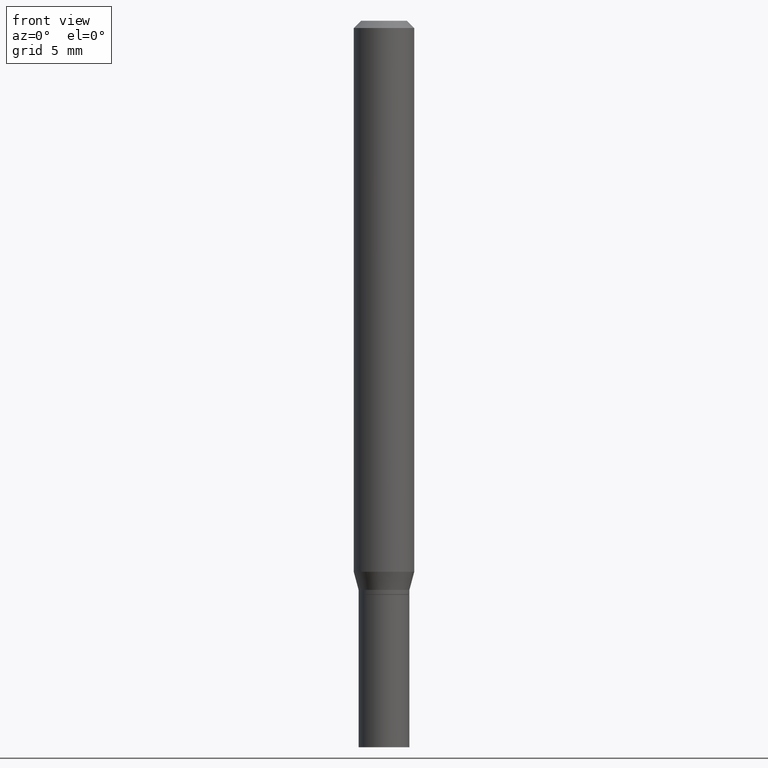
[diagram: clean part render]
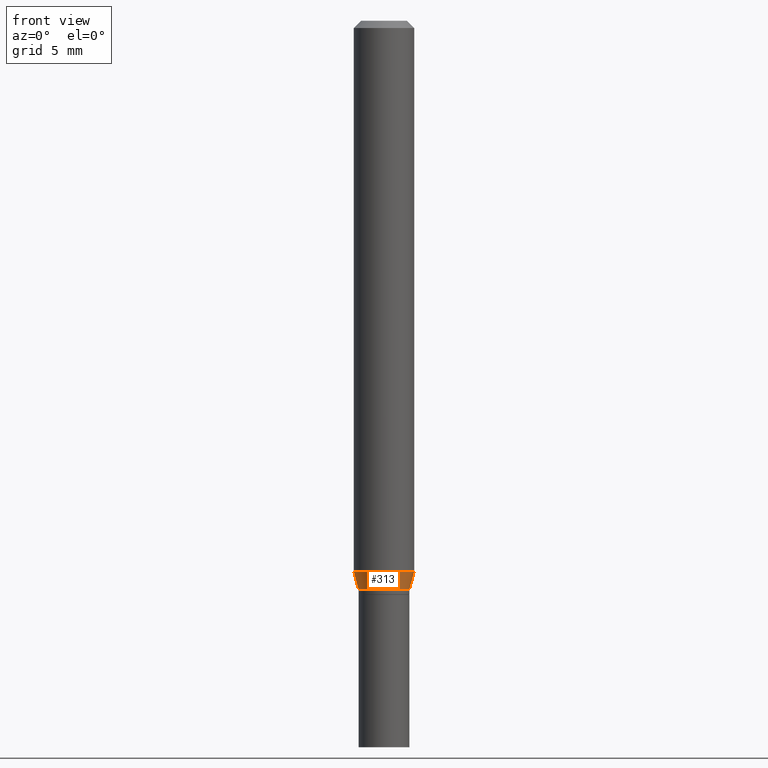
[diagram: same view with one face highlighted and labeled with its STEP entity id]
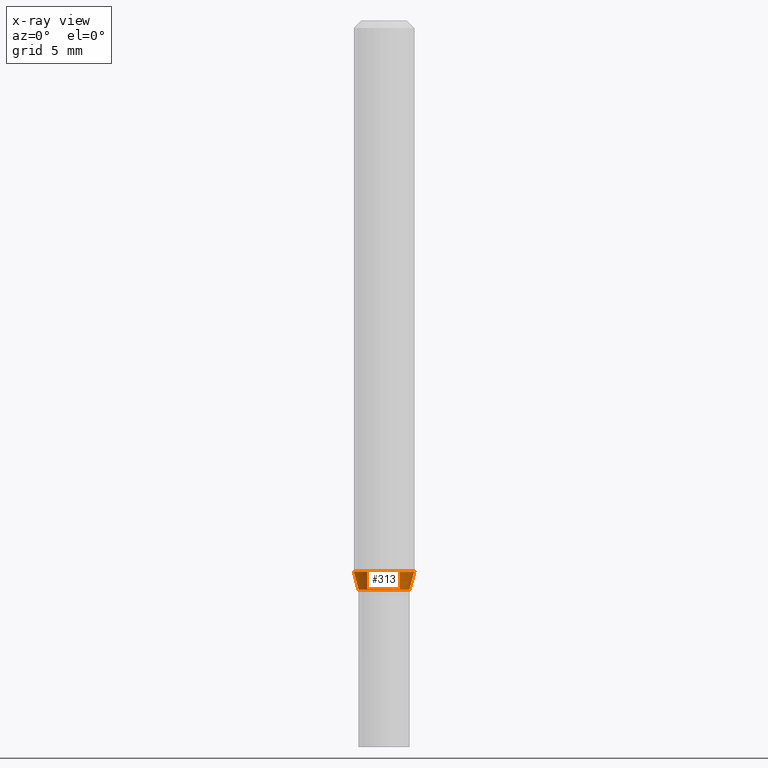
[diagram: x-ray of the same camera — body ghosted, the highlighted face saturated]
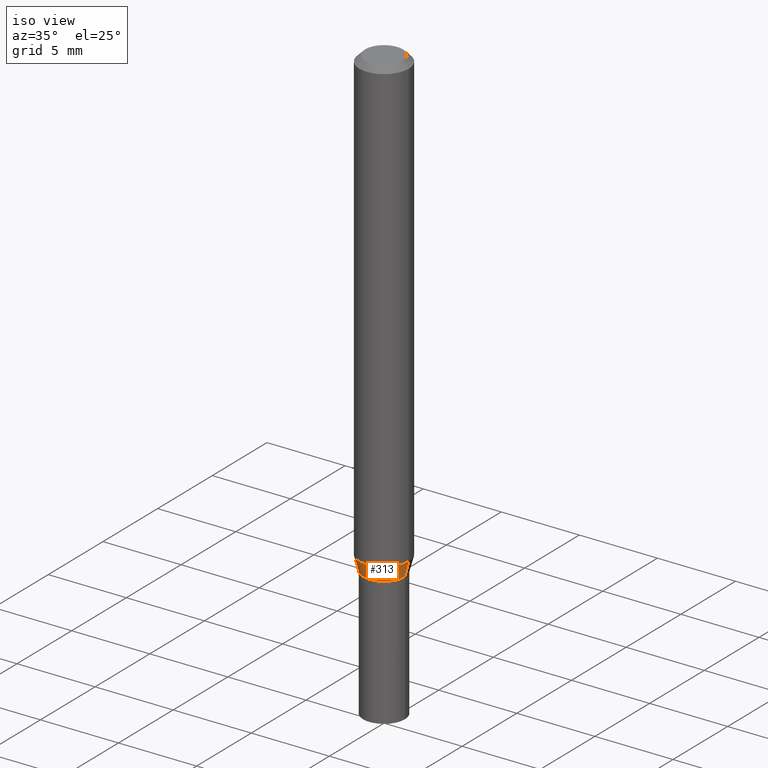
[diagram: same view with one face highlighted and labeled with its STEP entity id]
A machine part, front view. The second image highlights one B-rep face of the part: STEP entity #313.
The next image is the same camera in x-ray: the body ghosted, the highlighted face saturated — about 0% of this face is hidden behind the body in this view.
A second angle (iso view) of the same face is appended — the face is thin or edge-on in the first view.
In plain terms, the highlighted conical surface has half-angle 15 deg.
Its self-contained STEP definition (entity closure, byte-faithful):
#10 = DIRECTION ( 'NONE',  ( 1.000000000000000000, -6.982962677686270655E-15, 0.000000000000000000 ) ) ;
#14 = VECTOR ( 'NONE', #310, 39.37007874015748854 ) ;
#49 = LINE ( 'NONE', #264, #63 ) ;
#53 = CIRCLE ( 'NONE', #374, 0.06250000000000000000 ) ;
#55 = ORIENTED_EDGE ( 'NONE', *, *, #272, .F. ) ;
#63 = VECTOR ( 'NONE', #327, 39.37007874015748854 ) ;
#67 = DIRECTION ( 'NONE',  ( -2.445468806185136597E-29, 3.491481338843145583E-15, 1.000000000000000000 ) ) ;
#70 = LINE ( 'NONE', #390, #14 ) ;
#78 = CARTESIAN_POINT ( 'NONE',  ( 0.06250000000000000000, -4.408621882993677332E-15, -1.137679491924311614 ) ) ;
#97 = CARTESIAN_POINT ( 'NONE',  ( 2.873425847267535838E-29, -4.102490573140696681E-15, -1.175000000000000266 ) ) ;
#110 = CONICAL_SURFACE ( 'NONE', #453, 0.05250000000000004663, 0.2617993877991499074 ) ;
#131 = DIRECTION ( 'NONE',  ( -2.445468806185136597E-29, 3.491481338843145583E-15, 1.000000000000000000 ) ) ;
#138 = VERTEX_POINT ( 'NONE', #257 ) ;
#163 = EDGE_CURVE ( 'NONE', #229, #239, #383, .T. ) ;
#168 = AXIS2_PLACEMENT_3D ( 'NONE', #247, #131, #402 ) ;
#193 = VERTEX_POINT ( 'NONE', #78 ) ;
#195 = EDGE_CURVE ( 'NONE', #138, #193, #53, .T. ) ;
#229 = VERTEX_POINT ( 'NONE', #360 ) ;
#239 = VERTEX_POINT ( 'NONE', #330 ) ;
#247 = CARTESIAN_POINT ( 'NONE',  ( 2.873425847267535838E-29, -4.102490573140696681E-15, -1.175000000000000266 ) ) ;
#257 = CARTESIAN_POINT ( 'NONE',  ( -0.06250000000000000000, -3.528097505788222652E-15, -1.137679491924311614 ) ) ;
#264 = CARTESIAN_POINT ( 'NONE',  ( -0.05250000000000004663, -3.729455636866644146E-15, -1.175000000000000266 ) ) ;
#272 = EDGE_CURVE ( 'NONE', #229, #138, #49, .T. ) ;
#277 = DIRECTION ( 'NONE',  ( 1.000000000000000000, -6.982962677686261977E-15, 0.000000000000000000 ) ) ;
#297 = ORIENTED_EDGE ( 'NONE', *, *, #163, .T. ) ;
#310 = DIRECTION ( 'NONE',  ( 0.2588190451025211836, 1.565188264969622559E-15, 0.9659258262890679791 ) ) ;
#313 = ADVANCED_FACE ( 'NONE', ( #433 ), #110, .T. ) ;
#322 = DIRECTION ( 'NONE',  ( -2.445468806185136597E-29, 3.491481338843145583E-15, 1.000000000000000000 ) ) ;
#327 = DIRECTION ( 'NONE',  ( -0.2588190451025211836, 5.211531920934547886E-15, 0.9659258262890679791 ) ) ;
#330 = CARTESIAN_POINT ( 'NONE',  ( 0.05250000000000004663, -4.469096113719225841E-15, -1.175000000000000266 ) ) ;
#335 = ORIENTED_EDGE ( 'NONE', *, *, #195, .F. ) ;
#360 = CARTESIAN_POINT ( 'NONE',  ( -0.05250000000000004663, -3.628776571327433202E-15, -1.175000000000000266 ) ) ;
#362 = CARTESIAN_POINT ( 'NONE',  ( 2.782159708937459233E-29, -3.972186715638284874E-15, -1.137679491924311614 ) ) ;
#374 = AXIS2_PLACEMENT_3D ( 'NONE', #362, #322, #10 ) ;
#383 = CIRCLE ( 'NONE', #168, 0.05250000000000004663 ) ;
#386 = ORIENTED_EDGE ( 'NONE', *, *, #420, .T. ) ;
#390 = CARTESIAN_POINT ( 'NONE',  ( 0.05250000000000004663, -4.469096113719225841E-15, -1.175000000000000266 ) ) ;
#402 = DIRECTION ( 'NONE',  ( 1.000000000000000000, -6.982962677686261977E-15, 0.000000000000000000 ) ) ;
#415 = EDGE_LOOP ( 'NONE', ( #55, #297, #386, #335 ) ) ;
#420 = EDGE_CURVE ( 'NONE', #239, #193, #70, .T. ) ;
#433 = FACE_OUTER_BOUND ( 'NONE', #415, .T. ) ;
#453 = AXIS2_PLACEMENT_3D ( 'NONE', #97, #67, #277 ) ;